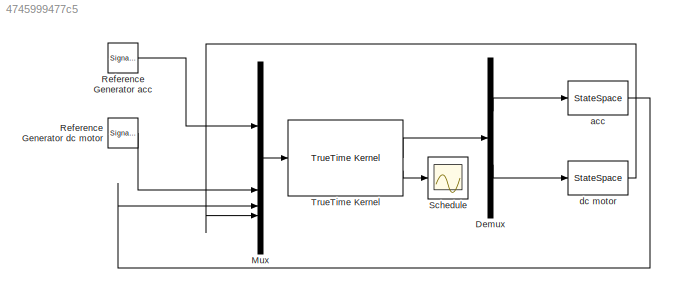
MODEL slx_4745999477c5
KIND model
CONFIG AbsTol = auto
CONFIG EnableMultiTasking = on
CONFIG FixedStep = auto
CONFIG InitFcn = clear functions
CONFIG MaxStep = auto
CONFIG MinStep = auto
CONFIG RelTol = 1e-3
CONFIG SampleTimeConstraint = Unconstrained
CONFIG SolverName = ode45
CONFIG StartTime = 0.0
CONFIG StopTime = 4.8
BLOCK [Demux] Demux
  DisplayOption = none
  Outputs = 2
BLOCK [Mux] Mux
  DisplayOption = bar
BLOCK [SignalGenerator] Reference Generator acc
  Amplitude = -10
  Frequency = 0.02
  WaveForm = square
BLOCK [SignalGenerator] Reference Generator dc motor
  Amplitude = -1
  Frequency = 0.02
  WaveForm = square
BLOCK [Scope] Schedule
  Floating = off
  NumInputPorts = 1
  ScopeSpecificationString = Simulink.scopes.TimeScopeBlockCfg('CurrentConfiguration', extmgr.ConfigurationSet(extmgr.Configuration('Core','General UI',true,'FigureColor',[0.156862745098039 0.156862745098039 0.156862745098039]),extmgr.Configuration('Core','Source UI',true),extmgr.Configuration('Sources','WiredSimulink',true,'DataLogging',true,'DataLoggingVariableName','ry','DataLoggingSaveFormat','StructureWithTime','DataLogg...<+2297ch>
BLOCK [Reference] TrueTime Kernel  REF=truetime/TrueTime Kernel  (lib defined in slx_0362a698a4ec)
  SourceBlock = truetime/TrueTime Kernel
  UserDataPersistent = on
BLOCK [StateSpace] acc
  A = [0 1; 1 0]
  B = [0; 1]
  C = [1 0]
  D = [0]
  InitialCondition = [0;0]
BLOCK [StateSpace] dc motor
  A = [-0.9999    0.9998; -0.0200   -1.9998]
  B = [0.0002;1.9999]
  C = [1 0]
  D = [0]
  InitialCondition = [0;0]
LINE Demux:1 -> acc:1
LINE Demux:2 -> dc motor:1
LINE Mux:1 -> TrueTime Kernel:1
LINE Reference Generator acc:1 -> Mux:1
LINE Reference Generator dc motor:1 -> Mux:2
LINE TrueTime Kernel:1 -> Demux:1
LINE TrueTime Kernel:2 -> Schedule:1
LINE acc:1 -> Mux:3
LINE dc motor:1 -> Mux:4
